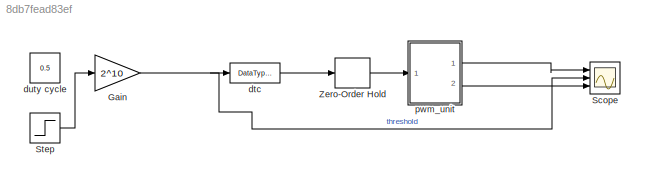
MODEL slx_8db7fead83ef
KIND model
CONFIG AbsTol = auto
CONFIG EnableMultiTasking = off
CONFIG FixedStep = T
CONFIG InitFcn = T = 1/50e6;
CONFIG MaxStep = auto
CONFIG MinStep = auto
CONFIG RelTol = 1e-3
CONFIG SampleTimeConstraint = Unconstrained
CONFIG Solver = FixedStepDiscrete
CONFIG SolverName = FixedStepDiscrete
CONFIG StartTime = 0.0
CONFIG StopTime = 10000*T
BLOCK [Gain] Gain
  Gain = 2^10
  OutDataTypeStr = Inherit: Inherit via internal rule
  ParamDataTypeStr = Inherit: Inherit via internal rule
  SaturateOnIntegerOverflow = off
BLOCK [Scope] Scope
  NumInputPorts = 3
  Ports = [3]
  ScopeSpecificationString = Simulink.scopes.TimeScopeBlockCfg('CurrentConfiguration', extmgr.ConfigurationSet(extmgr.Configuration('Core','General UI',true),extmgr.Configuration('Core','Source UI',true),extmgr.Configuration('Sources','WiredSimulink',true),extmgr.Configuration('Visuals','Time Domain',true,'SerializedDisplays',{struct('MinYLimReal','-127.875','MaxYLimReal','1150.875','YLabelReal','','MinYLimMag',' 0.00000','Ma...<+2688ch>
BLOCK [Step] Step
  After = 0.7
  Before = 0.5
  SampleTime = 0
  Time = 5000*T
BLOCK [ZeroOrderHold] Zero-Order Hold
  SampleTime = T
BLOCK [DataTypeConversion] dtc
  OutDataTypeStr = fixdt(0,10,0)
  RndMeth = Floor
  SaturateOnIntegerOverflow = off
BLOCK [Constant] duty cycle
  Value = 0.5
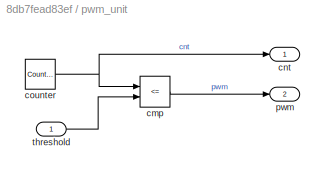
BLOCK [SubSystem] pwm_unit
  Ports = [1, 2]
  RequestExecContextInheritance = off
  Variant = off
BLOCK [RelationalOperator] pwm_unit/cmp
  InputSameDT = off
  Operator = <=
  OutDataTypeStr = boolean
  Ports = [2, 1]
  RndMeth = Simplest
BLOCK [Outport] pwm_unit/cnt
  IconDisplay = Port number
BLOCK [Reference] pwm_unit/counter  REF=simulink/Sources/Counter
Free-Running
  Ports = [0, 1]
  SourceBlock = simulink/Sources/Counter\nFree-Running
  SourceProductBaseCode = SL
  SourceProductName = Simulink
  SourceType = Counter Free-Running
BLOCK [Outport] pwm_unit/pwm
  IconDisplay = Port number
  Port = 2
BLOCK [Inport] pwm_unit/threshold
  IconDisplay = Port number
NET Gain:1 -> Scope:2, dtc:1
LINE Step:1 -> Gain:1
LINE Zero-Order Hold:1 -> pwm_unit:1
LINE dtc:1 -> Zero-Order Hold:1
LINE pwm_unit/cmp:1 -> pwm_unit/pwm:1
NET pwm_unit/counter:1 -> pwm_unit/cmp:1, pwm_unit/cnt:1
LINE pwm_unit/threshold:1 -> pwm_unit/cmp:2
LINE pwm_unit:1 -> Scope:1
LINE pwm_unit:2 -> Scope:3
note: NET lines group one-source signal fan-out (src -> all destinations, sorted); 1:1 wires keep LINE
